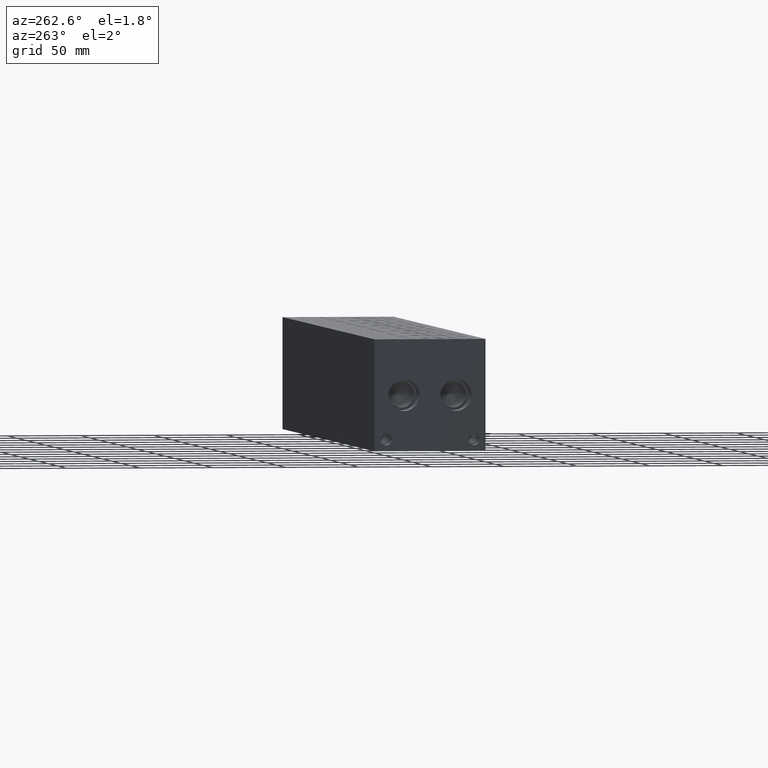
[diagram: clean part render]
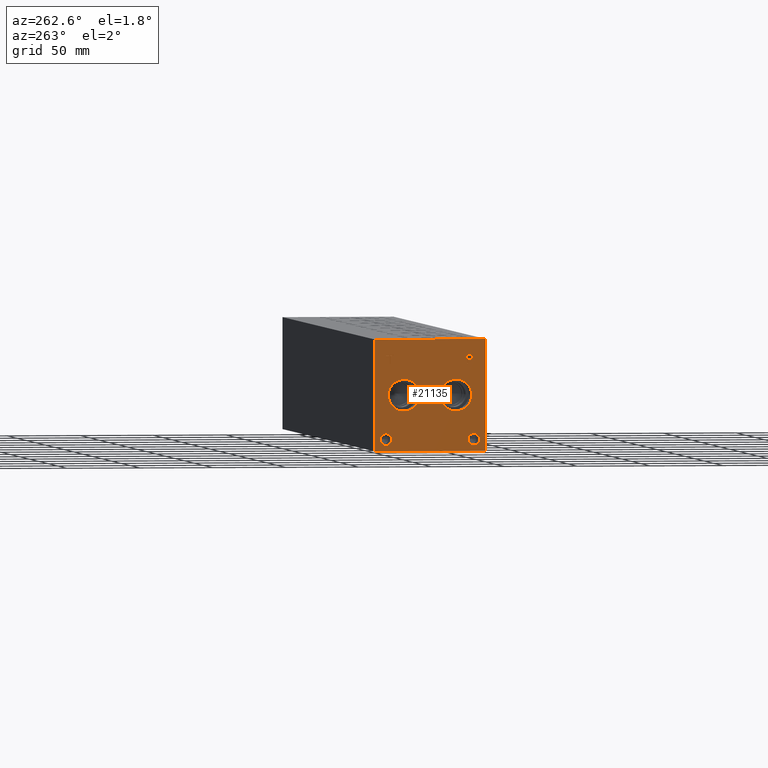
[diagram: same view with one face highlighted and labeled with its STEP entity id]
A machine part, auxiliary view. The second image highlights one B-rep face of the part: STEP entity #21135.
In plain terms, the highlighted planar face has unit normal (-1, 0, 0).
Its self-contained STEP definition (entity closure, byte-faithful):
#347=CIRCLE('',#22051,10.795);
#348=CIRCLE('',#22052,10.795);
#349=CIRCLE('',#22053,10.795);
#350=CIRCLE('',#22054,10.795);
#351=CIRCLE('',#22055,3.9624);
#352=CIRCLE('',#22056,3.9624);
#353=CIRCLE('',#22057,3.9624);
#354=CIRCLE('',#22058,3.9624);
#1036=FACE_BOUND('',#3723,.T.);
#1037=FACE_BOUND('',#3724,.T.);
#1038=FACE_BOUND('',#3725,.T.);
#1039=FACE_BOUND('',#3726,.T.);
#1040=FACE_BOUND('',#3727,.T.);
#1041=FACE_BOUND('',#3728,.T.);
#1675=PLANE('',#22050);
#2504=FACE_OUTER_BOUND('',#3722,.T.);
#3722=EDGE_LOOP('',(#17518,#17519,#17520,#17521));
#3723=EDGE_LOOP('',(#17522,#17523));
#3724=EDGE_LOOP('',(#17524,#17525));
#3725=EDGE_LOOP('',(#17526,#17527));
#3726=EDGE_LOOP('',(#17528,#17529));
#3727=EDGE_LOOP('',(#17530,#17531,#17532,#17533,#17534,#17535,#17536,#17537));
#3728=EDGE_LOOP('',(#17538,#17539,#17540,#17541,#17542,#17543,#17544,#17545,
#17546));
#4285=LINE('',#28131,#6099);
#5720=LINE('',#35335,#7534);
#5723=LINE('',#35341,#7537);
#5726=LINE('',#35347,#7540);
#5729=LINE('',#35353,#7543);
#5732=LINE('',#35359,#7546);
#5736=LINE('',#35401,#7550);
#5737=LINE('',#35403,#7551);
#5738=LINE('',#35404,#7552);
#5739=LINE('',#35423,#7553);
#5740=LINE('',#35425,#7554);
#5741=LINE('',#35427,#7555);
#5742=LINE('',#35429,#7556);
#5743=LINE('',#35431,#7557);
#5744=LINE('',#35433,#7558);
#5745=LINE('',#35435,#7559);
#5746=LINE('',#35436,#7560);
#6099=VECTOR('',#23076,10.);
#7534=VECTOR('',#25547,10.);
#7537=VECTOR('',#25552,10.);
#7540=VECTOR('',#25557,10.);
#7543=VECTOR('',#25562,10.);
#7546=VECTOR('',#25567,10.);
#7550=VECTOR('',#25575,10.);
#7551=VECTOR('',#25576,10.);
#7552=VECTOR('',#25577,10.);
#7553=VECTOR('',#25594,10.);
#7554=VECTOR('',#25595,10.);
#7555=VECTOR('',#25596,10.);
#7556=VECTOR('',#25597,10.);
#7557=VECTOR('',#25598,10.);
#7558=VECTOR('',#25599,10.);
#7559=VECTOR('',#25600,10.);
#7560=VECTOR('',#25601,10.);
#8380=B_SPLINE_CURVE_WITH_KNOTS('',2,(#35302,#35303,#35304,#35305),
 .UNSPECIFIED.,.F.,.F.,(3,1,3),(0.,1.,2.),.UNSPECIFIED.);
#8382=B_SPLINE_CURVE_WITH_KNOTS('',2,(#35323,#35324,#35325,#35326),
 .UNSPECIFIED.,.F.,.F.,(3,1,3),(0.,1.,2.),.UNSPECIFIED.);
#8384=B_SPLINE_CURVE_WITH_KNOTS('',2,(#35372,#35373,#35374,#35375),
 .UNSPECIFIED.,.F.,.F.,(3,1,3),(0.,1.,2.),.UNSPECIFIED.);
#8386=B_SPLINE_CURVE_WITH_KNOTS('',2,(#35390,#35391,#35392,#35393),
 .UNSPECIFIED.,.F.,.F.,(3,1,3),(0.,1.,2.),.UNSPECIFIED.);
#8436=VERTEX_POINT('',#28124);
#8439=VERTEX_POINT('',#28129);
#9764=VERTEX_POINT('',#35300);
#9765=VERTEX_POINT('',#35301);
#9768=VERTEX_POINT('',#35322);
#9770=VERTEX_POINT('',#35334);
#9772=VERTEX_POINT('',#35340);
#9774=VERTEX_POINT('',#35346);
#9776=VERTEX_POINT('',#35352);
#9778=VERTEX_POINT('',#35358);
#9780=VERTEX_POINT('',#35371);
#9782=VERTEX_POINT('',#35400);
#9783=VERTEX_POINT('',#35402);
#9784=VERTEX_POINT('',#35405);
#9785=VERTEX_POINT('',#35406);
#9786=VERTEX_POINT('',#35409);
#9787=VERTEX_POINT('',#35410);
#9788=VERTEX_POINT('',#35413);
#9789=VERTEX_POINT('',#35414);
#9790=VERTEX_POINT('',#35417);
#9791=VERTEX_POINT('',#35418);
#9792=VERTEX_POINT('',#35421);
#9793=VERTEX_POINT('',#35422);
#9794=VERTEX_POINT('',#35424);
#9795=VERTEX_POINT('',#35426);
#9796=VERTEX_POINT('',#35428);
#9797=VERTEX_POINT('',#35430);
#9798=VERTEX_POINT('',#35432);
#9799=VERTEX_POINT('',#35434);
#10570=EDGE_CURVE('',#8436,#8439,#4285,.T.);
#12534=EDGE_CURVE('',#9764,#9765,#8380,.T.);
#12538=EDGE_CURVE('',#9768,#9764,#8382,.T.);
#12541=EDGE_CURVE('',#9770,#9768,#5720,.T.);
#12544=EDGE_CURVE('',#9772,#9770,#5723,.T.);
#12547=EDGE_CURVE('',#9774,#9772,#5726,.T.);
#12550=EDGE_CURVE('',#9776,#9774,#5729,.T.);
#12553=EDGE_CURVE('',#9778,#9776,#5732,.T.);
#12556=EDGE_CURVE('',#9780,#9778,#8384,.T.);
#12559=EDGE_CURVE('',#9765,#9780,#8386,.T.);
#12561=EDGE_CURVE('',#9782,#8436,#5736,.T.);
#12562=EDGE_CURVE('',#9783,#8439,#5737,.T.);
#12563=EDGE_CURVE('',#9782,#9783,#5738,.T.);
#12564=EDGE_CURVE('',#9784,#9785,#347,.T.);
#12565=EDGE_CURVE('',#9785,#9784,#348,.T.);
#12566=EDGE_CURVE('',#9786,#9787,#349,.T.);
#12567=EDGE_CURVE('',#9787,#9786,#350,.T.);
#12568=EDGE_CURVE('',#9788,#9789,#351,.T.);
#12569=EDGE_CURVE('',#9789,#9788,#352,.T.);
#12570=EDGE_CURVE('',#9790,#9791,#353,.T.);
#12571=EDGE_CURVE('',#9791,#9790,#354,.T.);
#12572=EDGE_CURVE('',#9792,#9793,#5739,.T.);
#12573=EDGE_CURVE('',#9793,#9794,#5740,.T.);
#12574=EDGE_CURVE('',#9794,#9795,#5741,.T.);
#12575=EDGE_CURVE('',#9795,#9796,#5742,.T.);
#12576=EDGE_CURVE('',#9796,#9797,#5743,.T.);
#12577=EDGE_CURVE('',#9797,#9798,#5744,.T.);
#12578=EDGE_CURVE('',#9798,#9799,#5745,.T.);
#12579=EDGE_CURVE('',#9799,#9792,#5746,.T.);
#17518=ORIENTED_EDGE('',*,*,#12561,.T.);
#17519=ORIENTED_EDGE('',*,*,#10570,.T.);
#17520=ORIENTED_EDGE('',*,*,#12562,.F.);
#17521=ORIENTED_EDGE('',*,*,#12563,.F.);
#17522=ORIENTED_EDGE('',*,*,#12564,.T.);
#17523=ORIENTED_EDGE('',*,*,#12565,.T.);
#17524=ORIENTED_EDGE('',*,*,#12566,.T.);
#17525=ORIENTED_EDGE('',*,*,#12567,.T.);
#17526=ORIENTED_EDGE('',*,*,#12568,.T.);
#17527=ORIENTED_EDGE('',*,*,#12569,.T.);
#17528=ORIENTED_EDGE('',*,*,#12570,.T.);
#17529=ORIENTED_EDGE('',*,*,#12571,.T.);
#17530=ORIENTED_EDGE('',*,*,#12572,.T.);
#17531=ORIENTED_EDGE('',*,*,#12573,.T.);
#17532=ORIENTED_EDGE('',*,*,#12574,.T.);
#17533=ORIENTED_EDGE('',*,*,#12575,.T.);
#17534=ORIENTED_EDGE('',*,*,#12576,.T.);
#17535=ORIENTED_EDGE('',*,*,#12577,.T.);
#17536=ORIENTED_EDGE('',*,*,#12578,.T.);
#17537=ORIENTED_EDGE('',*,*,#12579,.T.);
#17538=ORIENTED_EDGE('',*,*,#12534,.T.);
#17539=ORIENTED_EDGE('',*,*,#12559,.T.);
#17540=ORIENTED_EDGE('',*,*,#12556,.T.);
#17541=ORIENTED_EDGE('',*,*,#12553,.T.);
#17542=ORIENTED_EDGE('',*,*,#12550,.T.);
#17543=ORIENTED_EDGE('',*,*,#12547,.T.);
#17544=ORIENTED_EDGE('',*,*,#12544,.T.);
#17545=ORIENTED_EDGE('',*,*,#12541,.T.);
#17546=ORIENTED_EDGE('',*,*,#12538,.T.);
#21135=ADVANCED_FACE('',(#2504,#1036,#1037,#1038,#1039,#1040,#1041),#1675,
 .T.);
#22050=AXIS2_PLACEMENT_3D('',#35399,#25573,#25574);
#22051=AXIS2_PLACEMENT_3D('',#35407,#25578,#25579);
#22052=AXIS2_PLACEMENT_3D('',#35408,#25580,#25581);
#22053=AXIS2_PLACEMENT_3D('',#35411,#25582,#25583);
#22054=AXIS2_PLACEMENT_3D('',#35412,#25584,#25585);
#22055=AXIS2_PLACEMENT_3D('',#35415,#25586,#25587);
#22056=AXIS2_PLACEMENT_3D('',#35416,#25588,#25589);
#22057=AXIS2_PLACEMENT_3D('',#35419,#25590,#25591);
#22058=AXIS2_PLACEMENT_3D('',#35420,#25592,#25593);
#23076=DIRECTION('',(0.,0.,1.));
#25547=DIRECTION('',(0.,-1.,0.));
#25552=DIRECTION('',(0.,-3.14708893596576E-15,1.));
#25557=DIRECTION('',(0.,1.,0.));
#25562=DIRECTION('',(0.,3.75218139805001E-15,-1.));
#25567=DIRECTION('',(0.,1.,0.));
#25573=DIRECTION('center_axis',(-1.,0.,0.));
#25574=DIRECTION('ref_axis',(0.,-1.,0.));
#25575=DIRECTION('',(0.,-1.,0.));
#25576=DIRECTION('',(0.,-1.,0.));
#25577=DIRECTION('',(0.,0.,1.));
#25578=DIRECTION('center_axis',(1.,0.,0.));
#25579=DIRECTION('ref_axis',(0.,1.,0.));
#25580=DIRECTION('center_axis',(1.,0.,0.));
#25581=DIRECTION('ref_axis',(0.,1.,0.));
#25582=DIRECTION('center_axis',(1.,0.,0.));
#25583=DIRECTION('ref_axis',(0.,1.,0.));
#25584=DIRECTION('center_axis',(1.,0.,0.));
#25585=DIRECTION('ref_axis',(0.,1.,0.));
#25586=DIRECTION('center_axis',(1.,0.,0.));
#25587=DIRECTION('ref_axis',(0.,1.,0.));
#25588=DIRECTION('center_axis',(1.,0.,0.));
#25589=DIRECTION('ref_axis',(0.,1.,0.));
#25590=DIRECTION('center_axis',(1.,0.,0.));
#25591=DIRECTION('ref_axis',(0.,1.,0.));
#25592=DIRECTION('center_axis',(1.,0.,0.));
#25593=DIRECTION('ref_axis',(0.,1.,0.));
#25594=DIRECTION('',(0.,1.,1.05244112384329E-14));
#25595=DIRECTION('',(0.,-3.17280044688052E-15,1.));
#25596=DIRECTION('',(0.,1.,4.16909044227779E-15));
#25597=DIRECTION('',(0.,0.,1.));
#25598=DIRECTION('',(0.,-1.,-3.47984565141735E-15));
#25599=DIRECTION('',(0.,0.,-1.));
#25600=DIRECTION('',(0.,1.,0.));
#25601=DIRECTION('',(0.,3.17280044688052E-15,-1.));
#28124=CARTESIAN_POINT('',(0.,0.,0.));
#28129=CARTESIAN_POINT('',(0.,0.,76.2));
#28131=CARTESIAN_POINT('',(0.,0.,0.));
#35300=CARTESIAN_POINT('',(0.,9.59318279764059,65.4850181439707));
#35301=CARTESIAN_POINT('',(0.,8.83674034546799,63.966987372604));
#35302=CARTESIAN_POINT('Ctrl Pts',(0.,9.59318279764059,65.4850181439707));
#35303=CARTESIAN_POINT('Ctrl Pts',(0.,9.23811797315141,65.2431623939564));
#35304=CARTESIAN_POINT('Ctrl Pts',(0.,8.83674034546799,64.4970116758269));
#35305=CARTESIAN_POINT('Ctrl Pts',(0.,8.83674034546799,63.966987372604));
#35322=CARTESIAN_POINT('',(0.,11.2552978456117,65.8812499046326));
#35323=CARTESIAN_POINT('Ctrl Pts',(0.,11.2552978456117,65.8812499046326));
#35324=CARTESIAN_POINT('Ctrl Pts',(0.,10.6892524732376,65.8812499046326));
#35325=CARTESIAN_POINT('Ctrl Pts',(0.,9.89678895191394,65.6959986918556));
#35326=CARTESIAN_POINT('Ctrl Pts',(0.,9.59318279764059,65.4850181439707));
#35334=CARTESIAN_POINT('',(0.,12.8505166223022,65.8812499046326));
#35335=CARTESIAN_POINT('',(0.,44.5252583111511,65.8812499046326));
#35340=CARTESIAN_POINT('',(0.,12.8505166223022,59.53125));
#35341=CARTESIAN_POINT('',(0.,12.8505166223023,29.7656249999999));
#35346=CARTESIAN_POINT('',(0.,12.0065944307627,59.53125));
#35347=CARTESIAN_POINT('',(0.,44.1032972153814,59.53125));
#35352=CARTESIAN_POINT('',(0.,12.0065944307627,61.8983488299279));
#35353=CARTESIAN_POINT('',(0.,12.0065944307628,30.9491744149638));
#35358=CARTESIAN_POINT('',(0.,11.2913189147628,61.8983488299279));
#35359=CARTESIAN_POINT('',(0.,43.7456594573814,61.8983488299279));
#35371=CARTESIAN_POINT('',(0.,9.39249398379889,62.5570198086904));
#35372=CARTESIAN_POINT('Ctrl Pts',(0.,9.39249398379889,62.5570198086904));
#35373=CARTESIAN_POINT('Ctrl Pts',(0.,9.72182947318016,62.2328301863307));
#35374=CARTESIAN_POINT('Ctrl Pts',(0.,10.6120644679139,61.8983488299279));
#35375=CARTESIAN_POINT('Ctrl Pts',(0.,11.2913189147628,61.8983488299279));
#35390=CARTESIAN_POINT('Ctrl Pts',(0.,8.83674034546799,63.966987372604));
#35391=CARTESIAN_POINT('Ctrl Pts',(0.,8.83674034546799,63.5553180108774));
#35392=CARTESIAN_POINT('Ctrl Pts',(0.,9.13005476569819,62.8143131597695));
#35393=CARTESIAN_POINT('Ctrl Pts',(0.,9.39249398379889,62.5570198086904));
#35399=CARTESIAN_POINT('Origin',(0.,76.2,0.));
#35400=CARTESIAN_POINT('',(0.,76.2,0.));
#35401=CARTESIAN_POINT('',(0.,76.2,0.));
#35402=CARTESIAN_POINT('',(0.,76.2,76.2));
#35403=CARTESIAN_POINT('',(0.,76.2,76.2));
#35404=CARTESIAN_POINT('',(0.,76.2,0.));
#35405=CARTESIAN_POINT('',(0.,66.7512,38.1));
#35406=CARTESIAN_POINT('',(0.,45.1612,38.1));
#35407=CARTESIAN_POINT('Origin',(0.,55.9562,38.1));
#35408=CARTESIAN_POINT('Origin',(0.,55.9562,38.1));
#35409=CARTESIAN_POINT('',(0.,31.0388,38.1));
#35410=CARTESIAN_POINT('',(0.,9.4488,38.1));
#35411=CARTESIAN_POINT('Origin',(0.,20.2438,38.1));
#35412=CARTESIAN_POINT('Origin',(0.,20.2438,38.1));
#35413=CARTESIAN_POINT('',(0.,72.2376,7.92480000000001));
#35414=CARTESIAN_POINT('',(0.,64.3128,7.92480000000001));
#35415=CARTESIAN_POINT('Origin',(0.,68.2752,7.92480000000001));
#35416=CARTESIAN_POINT('Origin',(0.,68.2752,7.92480000000001));
#35417=CARTESIAN_POINT('',(0.,11.8872,7.92480000000001));
#35418=CARTESIAN_POINT('',(0.,3.9624,7.92480000000001));
#35419=CARTESIAN_POINT('Origin',(0.,7.9248,7.92480000000001));
#35420=CARTESIAN_POINT('Origin',(0.,7.9248,7.92480000000001));
#35421=CARTESIAN_POINT('',(0.,65.293334728547,59.53125));
#35422=CARTESIAN_POINT('',(0.,66.1372569200865,59.53125));
#35423=CARTESIAN_POINT('',(0.,70.7466673642732,59.5312500000001));
#35424=CARTESIAN_POINT('',(0.,66.1372569200865,65.1299533194816));
#35425=CARTESIAN_POINT('',(0.,66.1372569200866,29.765625));
#35426=CARTESIAN_POINT('',(0.,68.2676458670216,65.1299533194816));
#35427=CARTESIAN_POINT('',(0.,71.1686284600431,65.1299533194816));
#35428=CARTESIAN_POINT('',(0.,68.2676458670216,65.8812499046326));
#35429=CARTESIAN_POINT('',(0.,68.2676458670216,32.5649766597408));
#35430=CARTESIAN_POINT('',(0.,63.1629457816119,65.8812499046326));
#35431=CARTESIAN_POINT('',(0.,72.2338229335107,65.8812499046326));
#35432=CARTESIAN_POINT('',(0.,63.1629457816119,65.1299533194816));
#35433=CARTESIAN_POINT('',(0.,63.1629457816119,32.9406249523163));
#35434=CARTESIAN_POINT('',(0.,65.293334728547,65.1299533194816));
#35435=CARTESIAN_POINT('',(0.,69.681472890806,65.1299533194816));
#35436=CARTESIAN_POINT('',(0.,65.2933347285471,32.5649766597408));